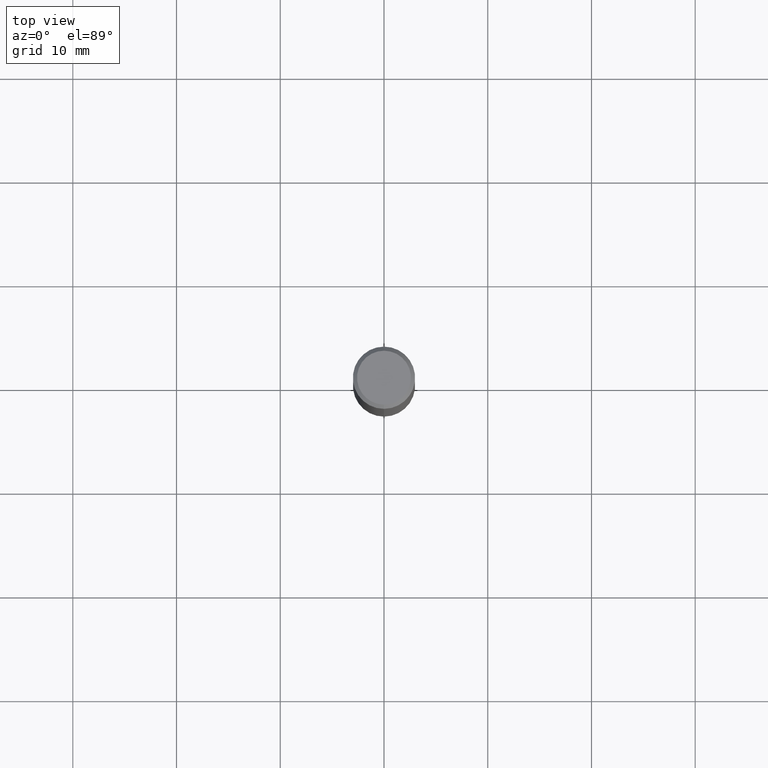
[diagram: clean part render]
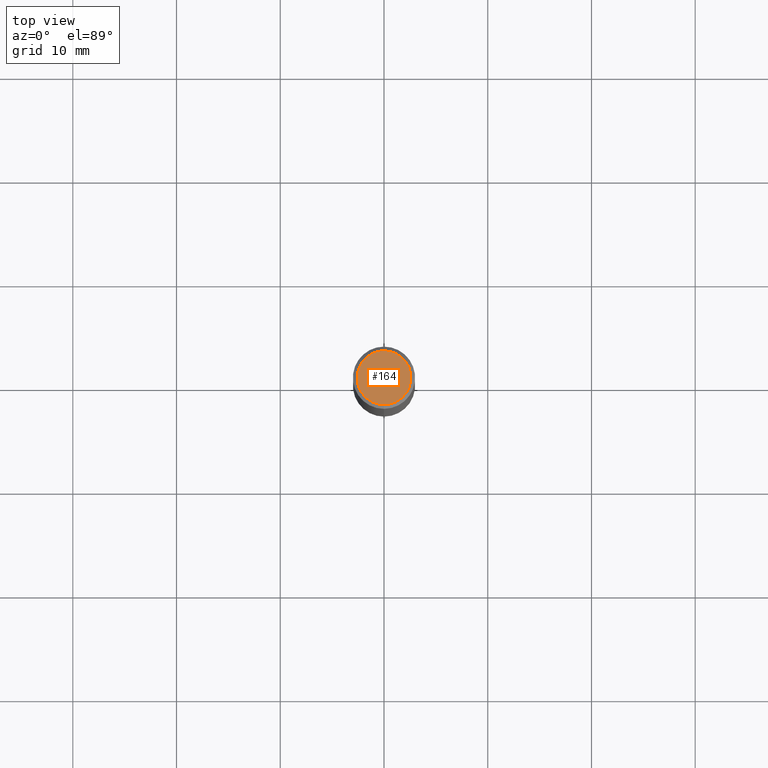
[diagram: same view with one face highlighted and labeled with its STEP entity id]
A machine part, top view. The second image highlights one B-rep face of the part: STEP entity #164.
In plain terms, the highlighted planar face has unit normal (-0, 0, 1).
Its self-contained STEP definition (entity closure, byte-faithful):
#90=EDGE_CURVE('',#122,#166,#211,.T.);
#122=VERTEX_POINT('',#245);
#164=ADVANCED_FACE('',(#297),#298,.T.);
#166=VERTEX_POINT('',#300);
#170=EDGE_CURVE('',#166,#122,#304,.T.);
#211=CIRCLE('',#343,2.6);
#245=CARTESIAN_POINT('',(3.18397651993818E-016,-2.6,0.0));
#297=FACE_OUTER_BOUND('',#448,.T.);
#298=PLANE('',#449);
#300=CARTESIAN_POINT('',(0.0,2.6,0.0));
#304=CIRCLE('',#456,2.6);
#343=AXIS2_PLACEMENT_3D('',#478,#479,#480);
#448=EDGE_LOOP('',(#605,#606));
#449=AXIS2_PLACEMENT_3D('',#607,#608,#609);
#456=AXIS2_PLACEMENT_3D('',#610,#611,#612);
#478=CARTESIAN_POINT('',(0.0,0.0,0.0));
#479=DIRECTION('',(0.0,0.0,-1.0));
#480=DIRECTION('',(0.0,1.0,0.0));
#605=ORIENTED_EDGE('',*,*,#170,.F.);
#606=ORIENTED_EDGE('',*,*,#90,.F.);
#607=CARTESIAN_POINT('',(0.0,1.3,0.0));
#608=DIRECTION('',(-0.0,0.0,1.0));
#609=DIRECTION('',(0.0,-1.0,0.0));
#610=CARTESIAN_POINT('',(0.0,0.0,0.0));
#611=DIRECTION('',(0.0,0.0,-1.0));
#612=DIRECTION('',(0.0,1.0,0.0));